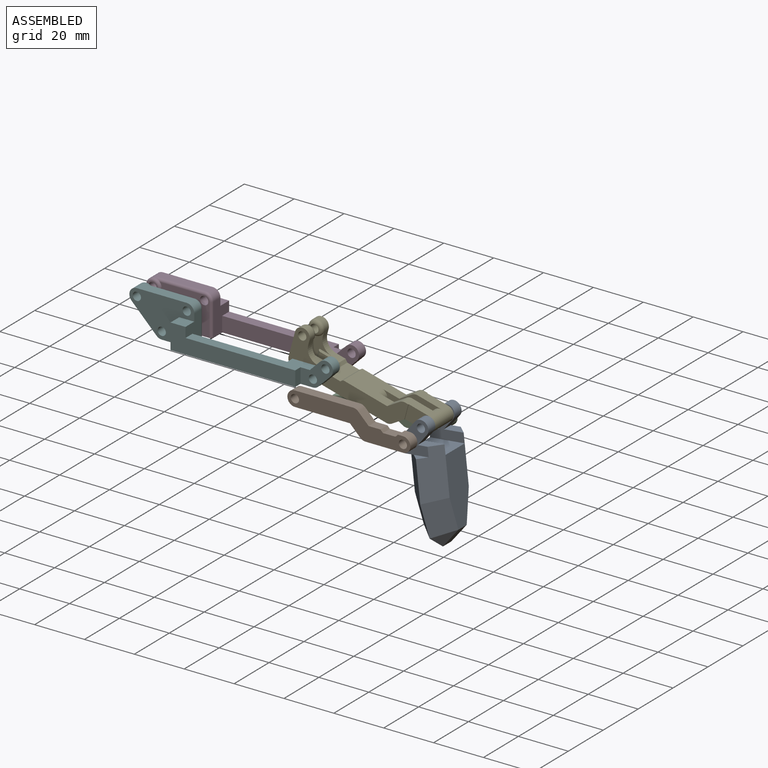
[diagram: assembled view]
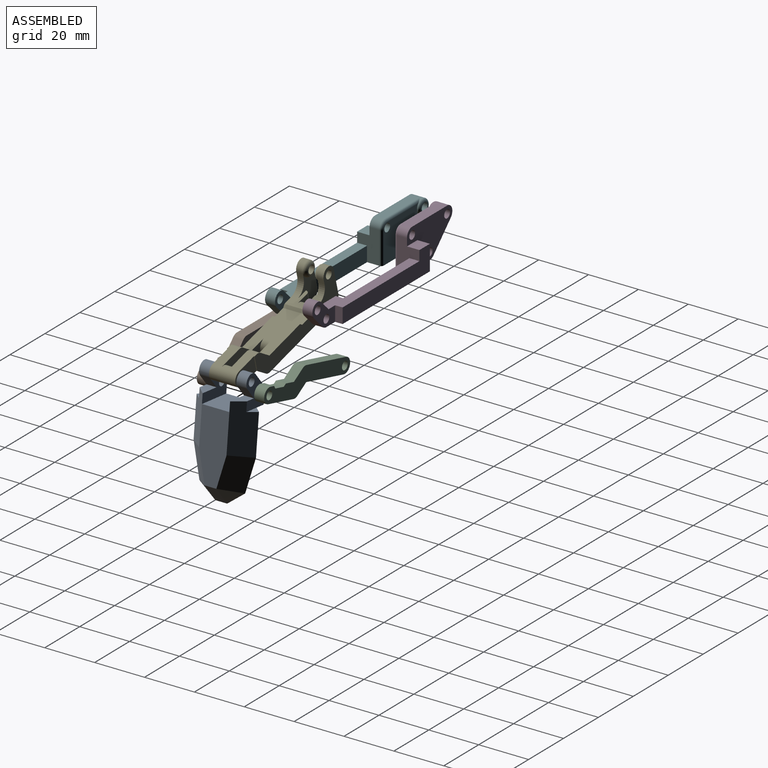
[diagram: assembled view, second angle]
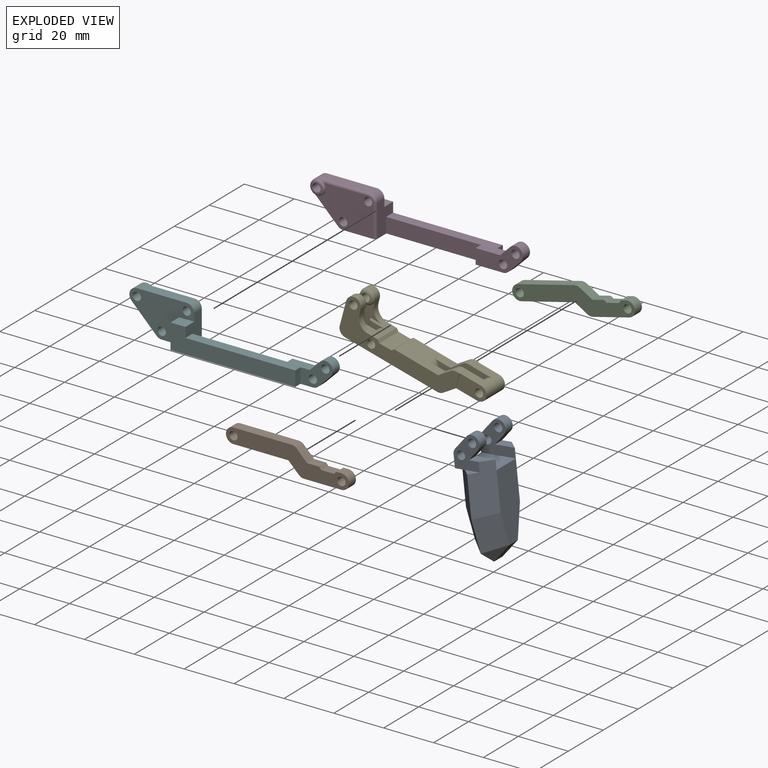
[diagram: exploded view]
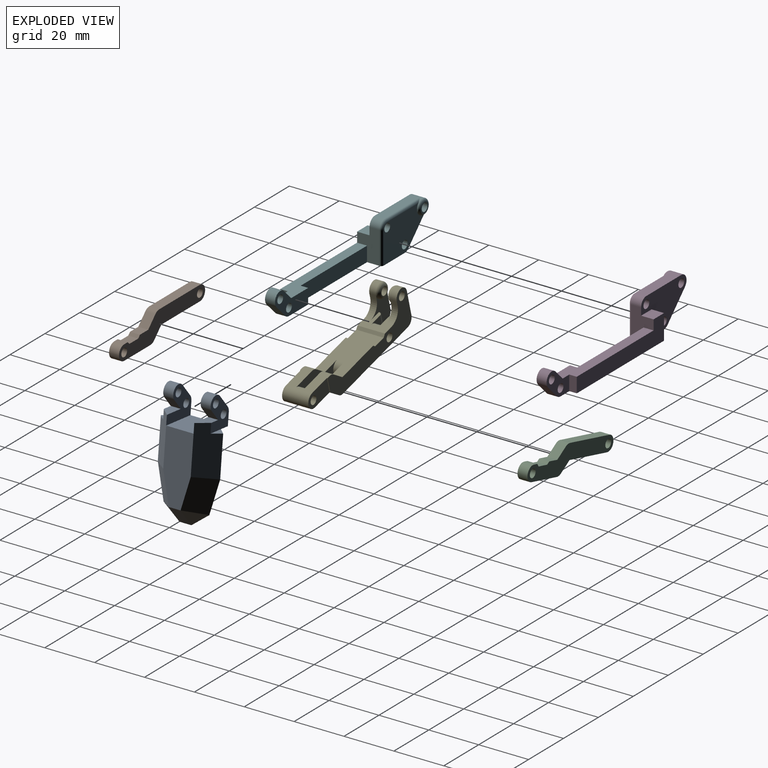
[diagram: exploded view, second angle]
ASSEMBLY  parts=6 mates=5
PART A: 41 faces, bbox 47.7x25x14 mm
  f0: cylinder r=3mm len=4mm, axis (0,-1,0), area 9.4mm2, adj f12,f15,f16,f38
  f1: plane 13x11mm, normal (0,-1,0), area 84.3mm2, adj f2,f3,f4,f5,f8,f9,f11,f20
  f2: plane 4.12x4.12mm, normal (0.71,0,0.71), area 23.3mm2, adj f1,f3,f7,f20
  f3: cylinder r=3mm len=5.12mm, axis (0,1,0), area 37.7mm2, adj f1,f2,f4,f7
  f4: plane 5x5mm, normal (-0.71,0,-0.71), area 28.3mm2, adj f1,f3,f5,f7
  f5: cylinder r=3mm len=4mm, axis (0,1,0), area 9.4mm2, adj f1,f4,f7,f40
  f6: plane 27.68x11mm, normal (0,0,-1), area 265.5mm2, adj f10,f23,f25,f28,f31,f32
  f7: plane 14x13mm, normal (0,1,0), area 99.3mm2, adj f2,f3,f4,f5,f8,f9,f10,f20
  f8: cylinder r=1.65mm len=4mm, axis (0,-1,0), area 41.5mm2, adj f1,f7
  f9: cylinder r=1.65mm len=4mm, axis (0,-1,0), area 41.5mm2, adj f1,f7
  f10: plane 14x11mm, normal (-1,0,0), area 154mm2, adj f6,f7,f16,f22
  f11: plane 6x3mm, normal (-1,0,0), area 9mm2, adj f1,f28,f29
  f12: plane 13x11mm, normal (0,1,0), area 84.3mm2, adj f0,f13,f14,f15,f17,f18,f19,f21
  f13: plane 4.12x4.12mm, normal (0.71,0,0.71), area 23.3mm2, adj f12,f14,f16,f21
  f14: cylinder r=3mm len=5.12mm, axis (0,-1,0), area 37.7mm2, adj f12,f13,f15,f16
  f15: plane 5x5mm, normal (-0.71,0,-0.71), area 28.3mm2, adj f0,f12,f14,f16
  f16: plane 14x13mm, normal (0,-1,0), area 99.3mm2, adj f0,f10,f13,f14,f15,f17,f18,f21
  f17: cylinder r=1.65mm len=4mm, axis (0,1,0), area 41.5mm2, adj f12,f16
  f18: cylinder r=1.65mm len=4mm, axis (0,1,0), area 41.5mm2, adj f12,f16
  f19: plane 6x3mm, normal (-1,0,0), area 9mm2, adj f12,f23,f24
  f20: plane 8x4mm, normal (-1,0,0), area 24mm2, adj f1,f2,f7,f29
  f21: plane 8x4mm, normal (-1,0,0), area 24mm2, adj f12,f13,f16,f24
  f22: plane 27.68x11mm, normal (0,0,1), area 265.5mm2, adj f10,f24,f26,f29,f33,f34
  f23: plane 16.05x7mm, normal (0,0.71,-0.71), area 154.6mm2, adj f6,f19,f24,f25,f37
  f24: plane 19.81x7mm, normal (0,0.71,0.71), area 175.9mm2, adj f12,f16,f19,f21,f22,f23,f26
  f25: plane 14.19x10.12mm, normal (0.17,0.69,-0.71), area 131.7mm2, adj f6,f23,f26,f27
  f26: plane 14.19x10.12mm, normal (0.17,0.69,0.71), area 131.7mm2, adj f22,f24,f25,f30
  f27: plane 7x7mm, normal (0.62,0.48,-0.62), area 38.4mm2, adj f25,f30,f31
  f28: plane 16.05x7mm, normal (0,-0.71,-0.71), area 154.6mm2, adj f6,f11,f29,f32,f39
  f29: plane 19.81x7mm, normal (0,-0.71,0.71), area 175.9mm2, adj f1,f7,f11,f20,f22,f28,f33
  f30: plane 7x7mm, normal (0.62,0.48,0.62), area 38.4mm2, adj f26,f27,f34
  f31: plane 7x7mm, normal (0.71,0,-0.71), area 47.1mm2, adj f6,f27,f34,f35
  f32: plane 14.19x10.12mm, normal (0.17,-0.69,-0.71), area 131.7mm2, adj f6,f28,f33,f35
  f33: plane 14.19x10.12mm, normal (0.17,-0.69,0.71), area 131.7mm2, adj f22,f29,f32,f36
  f34: plane 7x7mm, normal (0.71,0,0.71), area 47.1mm2, adj f22,f30,f31,f36
  f35: plane 7x7mm, normal (0.62,-0.48,-0.62), area 38.4mm2, adj f31,f32,f36
  f36: plane 7x7mm, normal (0.62,-0.48,0.62), area 38.4mm2, adj f33,f34,f35
  f37: plane 4x4mm, normal (1,0,0), area 8mm2, adj f12,f23,f38
  f38: plane 5x4mm, normal (0,0,-1), area 20mm2, adj f0,f12,f16,f37
  f39: plane 4x4mm, normal (1,0,0), area 8mm2, adj f1,f28,f40
  f40: plane 5x4mm, normal (0,0,-1), area 20mm2, adj f1,f5,f7,f39
PART B: 18 faces, bbox 49.3x4x11 mm
  f0: plane 4x2mm, normal (0,0,1), area 8mm2, adj f1,f11,f12,f17
  f1: plane 49.32x11mm, normal (0,-1,0), area 277.1mm2, adj f0,f2,f3,f4,f5,f6,f7,f8
  f2: plane 4.76x4mm, normal (0,0,1), area 19mm2, adj f1,f3,f12,f16
  f3: plane 4.12x4.12mm, normal (0.71,0,0.71), area 23.3mm2, adj f1,f2,f4,f12
  f4: cylinder r=3mm len=4mm, axis (0,1,0), area 9.4mm2, adj f1,f3,f5,f12
  f5: plane 23.32x4mm, normal (0,0,1), area 93.3mm2, adj f1,f4,f6,f12
  f6: cylinder r=3mm len=6mm, axis (0,1,0), area 37.7mm2, adj f1,f5,f7,f12
  f7: plane 22.08x4mm, normal (0,0,-1), area 88.3mm2, adj f1,f6,f8,f12
  f8: plane 4.12x4.12mm, normal (-0.71,0,-0.71), area 23.3mm2, adj f1,f7,f9,f12
  f9: cylinder r=3mm len=4mm, axis (0,1,0), area 9.4mm2, adj f1,f8,f10,f12
  f10: plane 15x4mm, normal (0,0,-1), area 60mm2, adj f1,f9,f11,f12
  f11: cylinder r=3mm len=6mm, axis (0,1,0), area 37.7mm2, adj f0,f1,f10,f12
  f12: plane 49.32x11mm, normal (0,1,0), area 277.1mm2, adj f0,f2,f3,f4,f5,f6,f7,f8
  f13: cylinder r=1.65mm len=4mm, axis (0,-1,0), area 41.5mm2, adj f1,f12
  f14: cylinder r=1.65mm len=4mm, axis (0,-1,0), area 41.5mm2, adj f1,f12
  f15: plane 5x4mm, normal (0,0,1), area 20mm2, adj f1,f12,f16,f17
  f16: plane 4x1mm, normal (0.71,0,0.71), area 5.7mm2, adj f1,f2,f12,f15
  f17: plane 4x1mm, normal (-0.71,0,0.71), area 5.7mm2, adj f0,f1,f12,f15
PART C: same geometry as B
PART D: 32 faces, bbox 83.2x11x16.2 mm
  f0: plane 5x5mm, normal (0.71,0,-0.71), area 28.3mm2, adj f4,f5,f28,f30
  f1: plane 4.12x4.12mm, normal (-0.71,0,0.71), area 23.3mm2, adj f5,f8,f28,f30
  f2: cylinder r=1.65mm len=4mm, axis (0,1,0), area 41.5mm2, adj f28,f30
  f3: cylinder r=1.65mm len=4mm, axis (0,1,0), area 41.5mm2, adj f28,f30
  f4: cylinder r=3mm len=4mm, axis (0,-1,0), area 9.4mm2, adj f0,f15,f28,f30
  f5: cylinder r=3mm len=5.12mm, axis (0,-1,0), area 37.7mm2, adj f0,f1,f28,f30
  f6: plane 50x10mm, normal (0,1,0), area 324mm2, adj f8,f9,f15,f21,f22,f29
  f7: plane 38x6mm, normal (0,-1,0), area 228mm2, adj f8,f9,f15,f27
  f8: plane 47.76x7mm, normal (0,0,1), area 209mm2, adj f1,f6,f7,f9,f27,f28,f29,f30
  f9: plane 13x9mm, normal (1,0,0), area 78mm2, adj f6,f7,f8,f10,f15,f16,f21,f24
  f10: cylinder r=3mm len=4mm, axis (0,-1,0), area 18.8mm2, adj f9,f11,f16,f25
  f11: plane 20x4mm, normal (0,0,1), area 80mm2, adj f10,f12,f16,f26
  f12: cylinder r=3mm len=5.24mm, axis (0,-1,0), area 36.3mm2, adj f11,f13,f16,f26,f31
  f13: plane 10x10mm, normal (-0.71,0,-0.71), area 70.7mm2, adj f12,f14,f16,f17
  f14: cylinder r=3mm len=5mm, axis (0,-1,0), area 11.8mm2, adj f13,f15,f16,f17
  f15: plane 62x10mm, normal (0,0,-1), area 308.8mm2, adj f4,f6,f7,f9,f14,f16,f17,f22
  f16: plane 26x16mm, normal (0,1,0), area 257mm2, adj f9,f10,f11,f12,f13,f14,f15,f18
  f17: plane 24.12x15mm, normal (0,-1,0), area 261.9mm2, adj f13,f14,f15,f18,f20,f24,f25,f26
  f18: cylinder r=1.65mm len=5mm, axis (0,1,0), area 51.8mm2, adj f16,f17
  f19: cylinder r=1.65mm len=6mm, axis (0,1,0), area 62.2mm2, adj f16,f23
  f20: cylinder r=1.65mm len=5mm, axis (0,1,0), area 51.8mm2, adj f16,f17
  f21: plane 6x5mm, normal (0,0,1), area 30mm2, adj f6,f9,f16,f22
  f22: plane 10x5mm, normal (-1,0,0), area 50mm2, adj f6,f15,f16,f21
  f23: plane 4x4mm, normal (0,-1,0), area 4mm2, adj f19,f31
  f24: cylinder r=1mm len=13mm, axis (0,0,1), area 20.4mm2, adj f9,f15,f17,f25
  f25: torus R=2mm, axis (0,1,0), area 6.5mm2, adj f10,f17,f24,f26
  f26: cylinder r=1mm len=20mm, axis (-1,0,0), area 29.5mm2, adj f11,f12,f17,f25
  f27: plane 6x3mm, normal (-1,0,0), area 18mm2, adj f7,f8,f15,f28
  f28: plane 19x11mm, normal (0,-1,0), area 105.3mm2, adj f0,f1,f2,f3,f4,f5,f8,f15
  f29: plane 6x3mm, normal (1,0,0), area 18mm2, adj f6,f8,f15,f30
  f30: plane 13x11mm, normal (0,1,0), area 69.3mm2, adj f0,f1,f2,f3,f4,f5,f8,f15
  f31: torus R=2mm, axis (0,-1,0), area 26mm2, adj f12,f17,f23
PART E: 52 faces, bbox 59.6x11x16.2 mm
  f0: plane 47.56x16mm, normal (0,-1,0), area 333.9mm2, adj f3,f5,f7,f8,f9,f10,f11,f12
  f1: plane 8.76x3.75mm, normal (0,0,-1), area 32.8mm2, adj f2,f14,f17,f31
  f2: cylinder r=3mm len=10.5mm, axis (0,1,0), area 99mm2, adj f1,f3,f20,f31,f33,f34,f51
  f3: plane 10x4mm, normal (0,0,1), area 37.8mm2, adj f0,f2,f15,f17,f30,f31
  f4: cylinder r=1.65mm len=10.5mm, axis (0,-1,0), area 108.9mm2, adj f31,f51
  f5: plane 18.18x11mm, normal (0,0,1), area 178.4mm2, adj f0,f16,f17,f19,f28,f32,f43,f44
  f6: plane 6x5.5mm, normal (0,1,0), area 18.8mm2, adj f7,f12,f18,f24
  f7: plane 11x8.9mm, normal (0,0,1), area 50.3mm2, adj f0,f6,f18,f23,f24,f26,f29,f32
  f8: plane 2.6x2mm, normal (1,0,0), area 5.2mm2, adj f0,f9,f23,f26
  f9: cylinder r=3mm len=6mm, axis (0,1,0), area 24.5mm2, adj f0,f8,f10,f23,f25
  f10: plane 10x2.6mm, normal (-1,0,0), area 26mm2, adj f0,f9,f11,f23
  f11: cylinder r=3mm len=3mm, axis (0,1,0), area 12.3mm2, adj f0,f10,f12,f23
  f12: plane 38.32x11mm, normal (0,0,-1), area 357.3mm2, adj f0,f6,f11,f13,f17,f18,f19,f23
  f13: cylinder r=3mm len=4mm, axis (0,1,0), area 9.4mm2, adj f0,f12,f14,f17
  f14: plane 4.12x4.12mm, normal (0.71,0,-0.71), area 23.3mm2, adj f0,f1,f13,f17,f30
  f15: cylinder r=3mm len=4mm, axis (0,1,0), area 9.4mm2, adj f0,f3,f16,f17
  f16: plane 4.12x4.12mm, normal (-0.71,0,0.71), area 23.3mm2, adj f0,f5,f15,f17
  f17: plane 23.42x11mm, normal (0,1,0), area 124.3mm2, adj f1,f3,f5,f12,f13,f14,f15,f16
  f18: cylinder r=3mm len=6mm, axis (0,-1,0), area 28.3mm2, adj f6,f7,f12,f35
  f19: cylinder r=3mm len=6mm, axis (0,-1,0), area 28.3mm2, adj f5,f12,f17,f44
  f20: extruded ~6x3mm, area 28.3mm2, adj f2,f17,f44
  f21: cylinder r=1.65mm len=11mm, axis (0,-1,0), area 114mm2, adj f0,f32
  f22: cylinder r=1.65mm len=4mm, axis (0,-1,0), area 41.5mm2, adj f0,f25
  f23: plane 13x11mm, normal (0,1,0), area 67.3mm2, adj f7,f8,f9,f10,f11,f12,f24,f26
  f24: cylinder r=1.4mm len=6mm, axis (0,0,-1), area 13.2mm2, adj f6,f7,f12,f23
  f25: torus R=1.6mm, axis (0,1,0), area 33.9mm2, adj f9,f22
  f26: cylinder r=5mm len=5mm, axis (0,-1,0), area 20.4mm2, adj f0,f7,f8,f23
  f27: plane 11x5mm, normal (0,0,1), area 55mm2, adj f0,f28,f29,f32
  f28: plane 11x1mm, normal (-0.71,0,0.71), area 15.6mm2, adj f0,f5,f27,f32
  f29: plane 11x1mm, normal (0.71,0,0.71), area 15.6mm2, adj f0,f7,f27,f32
  f30: plane 6x0.25mm, normal (1,0,0), area 1.5mm2, adj f0,f3,f14,f31
  f31: plane 11.76x6mm, normal (0,-1,0), area 58.1mm2, adj f1,f2,f3,f4,f30
  f32: plane 47.56x16mm, normal (0,1,0), area 333.9mm2, adj f5,f7,f12,f21,f27,f28,f29,f34
  f33: plane 8.76x3.75mm, normal (0,0,-1), area 32.8mm2, adj f2,f41,f44,f51
  f34: plane 10x4mm, normal (0,0,1), area 37.8mm2, adj f2,f32,f42,f44,f50,f51
  f35: plane 6x5.5mm, normal (0,-1,0), area 18.8mm2, adj f7,f12,f18,f47
  f36: plane 2.6x2mm, normal (1,0,0), area 5.2mm2, adj f32,f37,f46,f49
  f37: cylinder r=3mm len=6mm, axis (0,-1,0), area 24.5mm2, adj f32,f36,f38,f46,f48
  f38: plane 10x2.6mm, normal (-1,0,0), area 26mm2, adj f32,f37,f39,f46
  f39: cylinder r=3mm len=3mm, axis (0,-1,0), area 12.3mm2, adj f12,f32,f38,f46
  f40: cylinder r=3mm len=4mm, axis (0,-1,0), area 9.4mm2, adj f12,f32,f41,f44
  f41: plane 4.12x4.12mm, normal (0.71,0,-0.71), area 23.3mm2, adj f32,f33,f40,f44,f50
  f42: cylinder r=3mm len=4mm, axis (0,-1,0), area 9.4mm2, adj f32,f34,f43,f44
  f43: plane 4.12x4.12mm, normal (-0.71,0,0.71), area 23.3mm2, adj f5,f32,f42,f44
  f44: plane 23.42x11mm, normal (0,-1,0), area 124.3mm2, adj f5,f12,f19,f20,f33,f34,f40,f41
  f45: cylinder r=1.65mm len=4mm, axis (0,1,0), area 41.5mm2, adj f32,f48
  f46: plane 13x11mm, normal (0,-1,0), area 67.3mm2, adj f7,f12,f36,f37,f38,f39,f47,f49
  f47: cylinder r=1.4mm len=6mm, axis (0,0,-1), area 13.2mm2, adj f7,f12,f35,f46
  f48: torus R=1.6mm, axis (0,-1,0), area 33.9mm2, adj f37,f45
  f49: cylinder r=5mm len=5mm, axis (0,1,0), area 20.4mm2, adj f7,f32,f36,f46
  f50: plane 6x0.25mm, normal (1,0,0), area 1.5mm2, adj f32,f34,f41,f51
  f51: plane 11.76x6mm, normal (0,1,0), area 58.1mm2, adj f2,f4,f33,f34,f50
PART F: 32 faces, bbox 83.2x11x16.2 mm
  f0: plane 5x5mm, normal (0.71,0,-0.71), area 28.3mm2, adj f4,f5,f28,f30
  f1: plane 4.12x4.12mm, normal (-0.71,0,0.71), area 23.3mm2, adj f5,f8,f28,f30
  f2: cylinder r=1.65mm len=4mm, axis (0,-1,0), area 41.5mm2, adj f28,f30
  f3: cylinder r=1.65mm len=4mm, axis (0,-1,0), area 41.5mm2, adj f28,f30
  f4: cylinder r=3mm len=4mm, axis (0,1,0), area 9.4mm2, adj f0,f15,f28,f30
  f5: cylinder r=3mm len=5.12mm, axis (0,1,0), area 37.7mm2, adj f0,f1,f28,f30
  f6: plane 50x10mm, normal (0,-1,0), area 324mm2, adj f8,f9,f15,f21,f22,f29
  f7: plane 38x6mm, normal (0,1,0), area 228mm2, adj f8,f9,f15,f27
  f8: plane 47.76x7mm, normal (0,0,1), area 209mm2, adj f1,f6,f7,f9,f27,f28,f29,f30
  f9: plane 13x9mm, normal (1,0,0), area 78mm2, adj f6,f7,f8,f10,f15,f16,f21,f24
  f10: cylinder r=3mm len=4mm, axis (0,1,0), area 18.8mm2, adj f9,f11,f16,f25
  f11: plane 20x4mm, normal (0,0,1), area 80mm2, adj f10,f12,f16,f26
  f12: cylinder r=3mm len=5.24mm, axis (0,1,0), area 36.3mm2, adj f11,f13,f16,f26,f31
  f13: plane 10x10mm, normal (-0.71,0,-0.71), area 70.7mm2, adj f12,f14,f16,f17
  f14: cylinder r=3mm len=5mm, axis (0,1,0), area 11.8mm2, adj f13,f15,f16,f17
  f15: plane 62x10mm, normal (0,0,-1), area 308.8mm2, adj f4,f6,f7,f9,f14,f16,f17,f22
  f16: plane 26x16mm, normal (0,-1,0), area 257mm2, adj f9,f10,f11,f12,f13,f14,f15,f18
  f17: plane 24.12x15mm, normal (0,1,0), area 261.9mm2, adj f13,f14,f15,f18,f20,f24,f25,f26
  f18: cylinder r=1.65mm len=5mm, axis (0,-1,0), area 51.8mm2, adj f16,f17
  f19: cylinder r=1.65mm len=6mm, axis (0,-1,0), area 62.2mm2, adj f16,f23
  f20: cylinder r=1.65mm len=5mm, axis (0,-1,0), area 51.8mm2, adj f16,f17
  f21: plane 6x5mm, normal (0,0,1), area 30mm2, adj f6,f9,f16,f22
  f22: plane 10x5mm, normal (-1,0,0), area 50mm2, adj f6,f15,f16,f21
  f23: plane 4x4mm, normal (0,1,0), area 4mm2, adj f19,f31
  f24: cylinder r=1mm len=13mm, axis (0,0,1), area 20.4mm2, adj f9,f15,f17,f25
  f25: torus R=2mm, axis (0,-1,0), area 6.5mm2, adj f10,f17,f24,f26
  f26: cylinder r=1mm len=20mm, axis (-1,0,0), area 29.5mm2, adj f11,f12,f17,f25
  f27: plane 6x3mm, normal (-1,0,0), area 18mm2, adj f7,f8,f15,f28
  f28: plane 19x11mm, normal (0,1,0), area 105.3mm2, adj f0,f1,f2,f3,f4,f5,f8,f15
  f29: plane 6x3mm, normal (1,0,0), area 18mm2, adj f6,f8,f15,f30
  f30: plane 13x11mm, normal (0,-1,0), area 69.3mm2, adj f0,f1,f2,f3,f4,f5,f8,f15
  f31: torus R=2mm, axis (0,1,0), area 26mm2, adj f12,f17,f23
PLACE A rot(axis=(0,1,0),83.8deg) t=(-30.51,-0.3,32.54)mm
PLACE B rot(axis=(0,-1,0),0deg) t=(-30.51,-4.3,32.54)mm
PLACE C rot(axis=(0,-1,0),14.1deg) t=(-30.51,18.7,32.54)mm
PLACE D rot(axis=(0,-1,0),0deg) t=(-109.31,2.45,44.39)mm
PLACE E rot(axis=(0,1,0),14.9deg) t=(-50,3.45,39.26)mm
PLACE F rot(axis=(0,-1,0),0deg) t=(-109.31,2.45,44.39)mm
MATE revolute C.f13 <-> A.f9  axis (0,-1,0) through (-30.51,14.7,32.54)mm
MATE revolute E.f2 <-> A.f3  axis (0,-1,0) through (-26.08,-0.3,38.05)mm
MATE revolute D.f2 <-> E.f21  axis (0,-1,0) through (-69.23,10.45,44.39)mm
MATE revolute F.f2 <-> E.f21  axis (0,1,0) through (-69.23,-0.55,44.39)mm
MATE revolute B.f11 <-> A.f9  axis (0,1,0) through (-30.51,-4.3,32.54)mm
